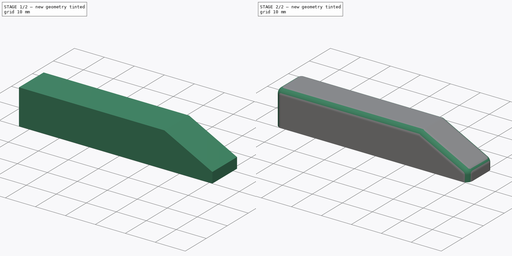
[diagram: build sequence overview — one tinted view per stage of 2, left to right]
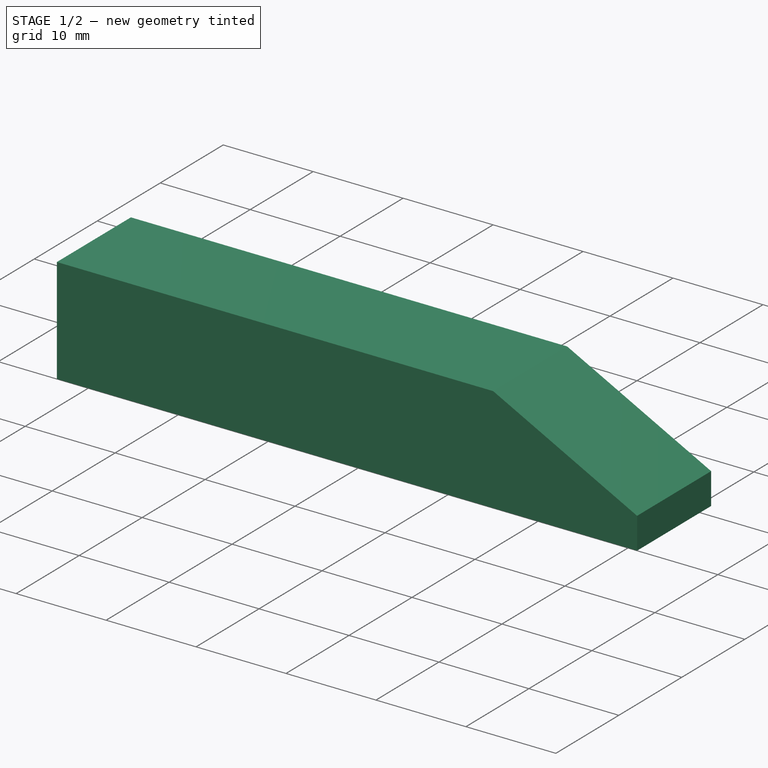
[diagram: stage 1 of 2 — iso view after this stage's code; geometry added in this stage tinted green]
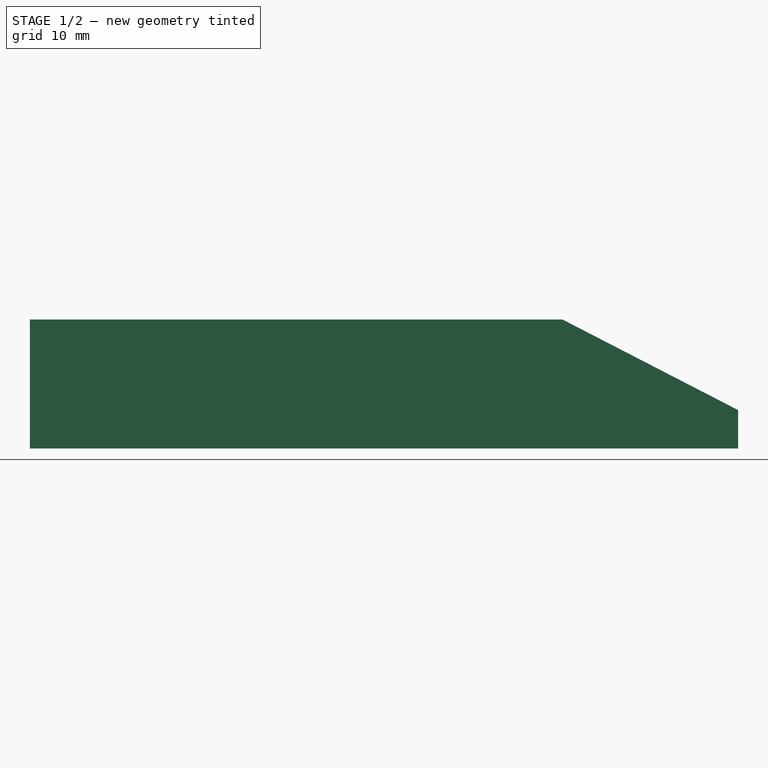
[diagram: stage 1 of 2 — front view after this stage's code; geometry added in this stage tinted green]
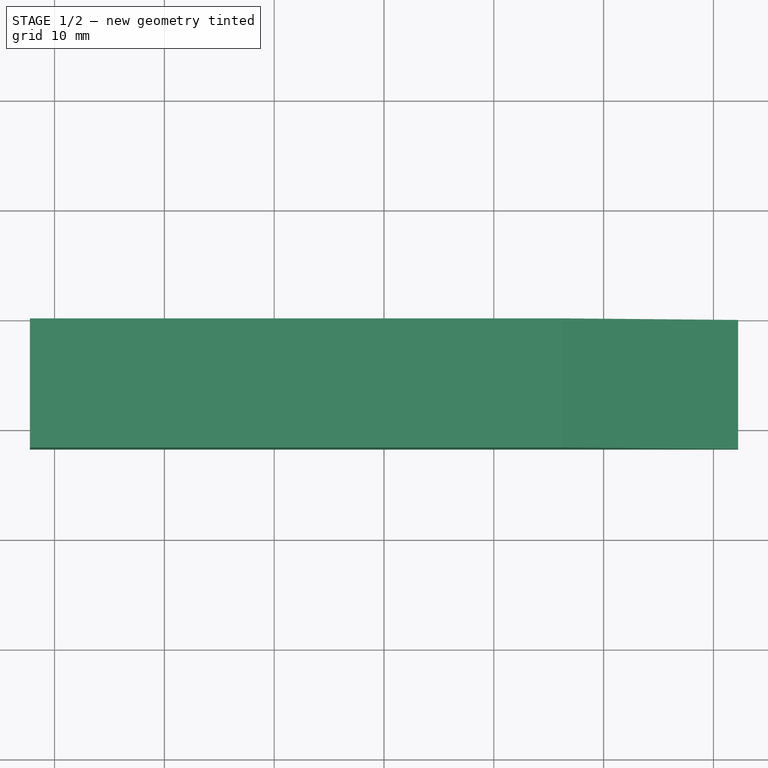
[diagram: stage 1 of 2 — top view after this stage's code; geometry added in this stage tinted green]
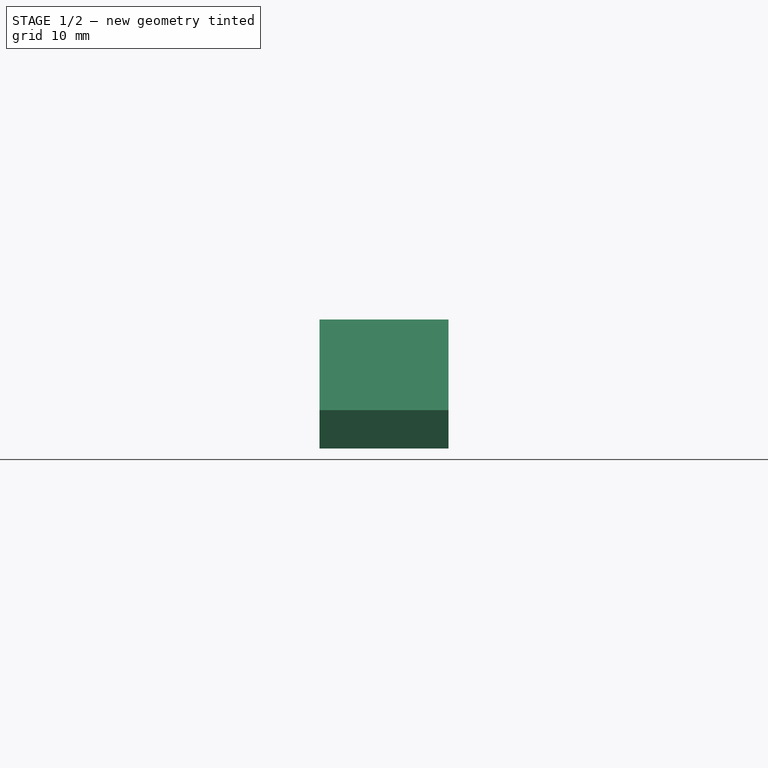
[diagram: stage 1 of 2 — right view after this stage's code; geometry added in this stage tinted green]
FCSTD DOCUMENT  (FreeCAD 1.1R41728 (Git))
Label: Уплотнитель
License: All rights reserved
LicenseURL: https://en.wikipedia.org/wiki/All_rights_reserved
objects: App::Point×1, Sketcher::SketchObject×1, PartDesign::Pad×1, PartDesign::Fillet×1, PartDesign::Body×1
note: 9 computed .brp shape members not serialized (recipe doc carries the construction recipe); baked Part::Feature solids carry a one-line shape summary decoded from their .brp

FEATURE [App::Point] Origin001  label="Начало координат"
  Role = Origin
FEATURE [Sketcher::SketchObject] Sketch
  ArcFitTolerance = 1e-06
  AttachmentSupport = -> [Origin]
  ExternalTypes = [0]
  FullyConstrained = true
  MakeInternals = false
  MapMode = 5
  Placement = pos=(0,0,0) rot=(1,0,0;1.5708rad)
  sketch-geometry (6):
    g0: LineSegment StartX=-32.25 StartY=5.875 StartZ=0 EndX=-32.25 EndY=-5.875 EndZ=0
    g1: LineSegment StartX=-32.25 StartY=-5.875 StartZ=0 EndX=32.25 EndY=-5.875 EndZ=0
    g2: LineSegment StartX=32.25 StartY=-5.875 StartZ=0 EndX=32.25 EndY=-2.375 EndZ=0
    g3: LineSegment StartX=32.25 StartY=-2.375 StartZ=0 EndX=16.25 EndY=5.875 EndZ=0
    g4: LineSegment StartX=16.25 StartY=5.875 StartZ=0 EndX=-32.25 EndY=5.875 EndZ=0
    g5: GeomPoint [constr] X=32.25 Y=5.875 Z=0
  constraints (16):
    c: Coincident(g0,g1)
    c: Horizontal(g1)
    c: Coincident(g1,g2)
    c: Coincident(g2,g3)
    c: Coincident(g3,g4)
    c: Coincident(g4,g0)
    c: Vertical(g0)
    c: Horizontal(g4)
    c: Vertical(g2)
    c: DistanceX(g3,g2) = 16
    c: DistanceX(g0,g2) = 64.5
    c: DistanceY(g1,g3) = 11.75  'h1'
    c: Distance(g2,g1) = 3.5
    c: Horizontal(g3,g5)
    c: Vertical(g5,g2)
    c: Symmetric(g0,g5,g-1)
FEATURE [PartDesign::Pad] Pad
  Direction = (0,-1,0)
  Length = 11.75
  Length2 = 10
  Profile = -> Sketch
  ReferenceAxis = -> Sketch [N_Axis]
  Refine = true
  Suppressed = false
  Type = 0
  expr: Length = Sketch.Constraints.h1
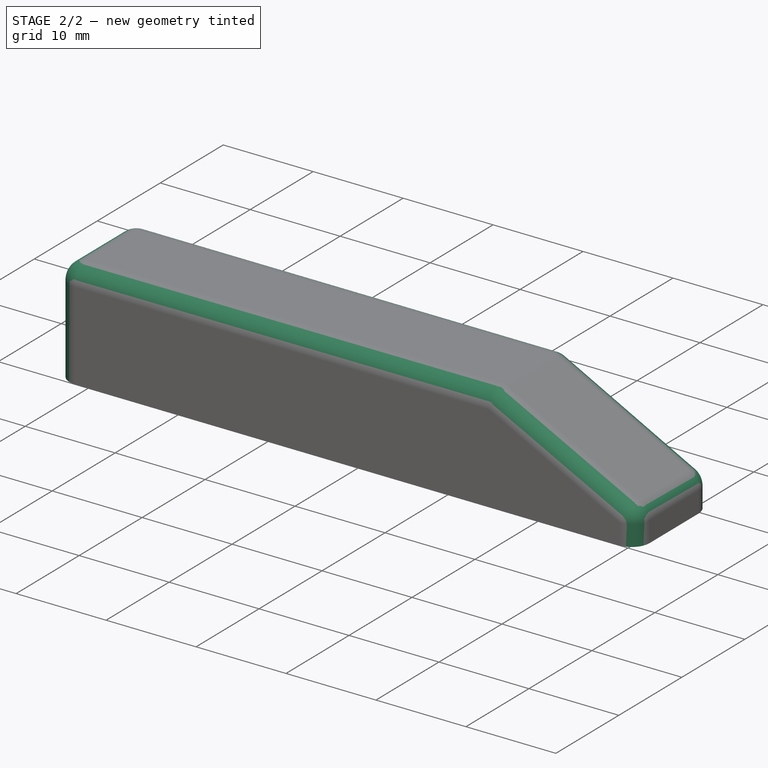
[diagram: stage 2 of 2 — iso view after this stage's code; geometry added in this stage tinted green]
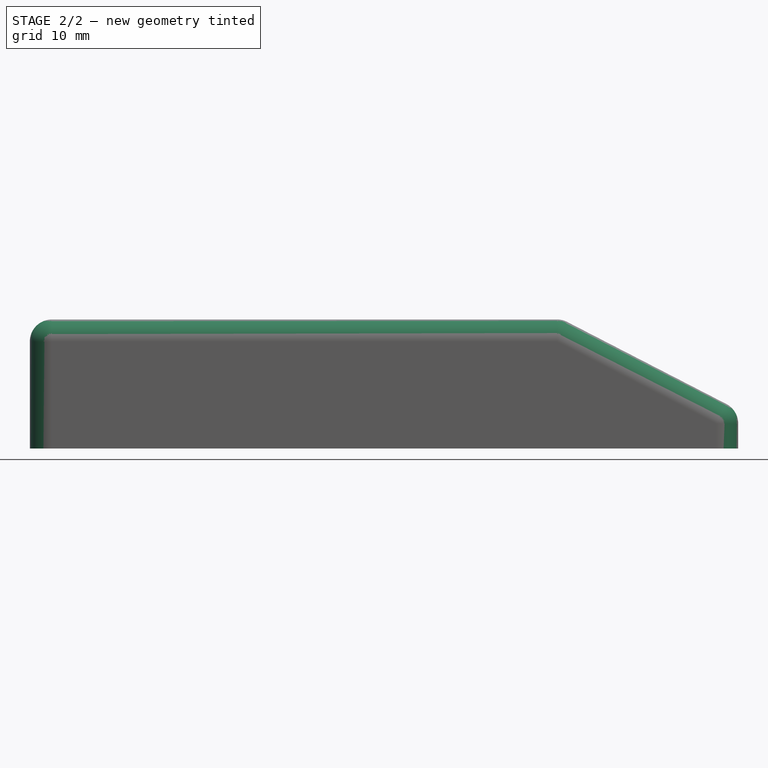
[diagram: stage 2 of 2 — front view after this stage's code; geometry added in this stage tinted green]
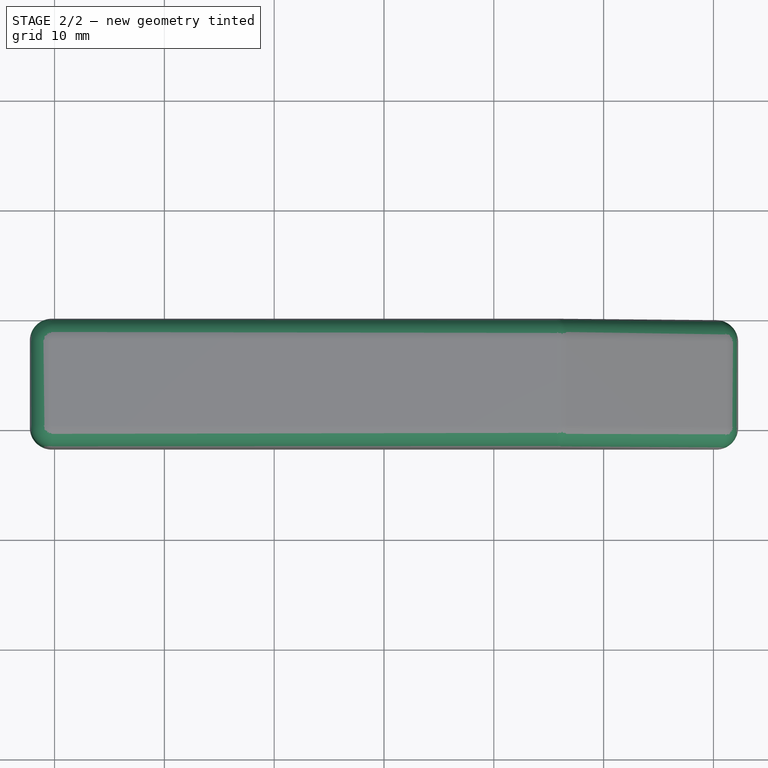
[diagram: stage 2 of 2 — top view after this stage's code; geometry added in this stage tinted green]
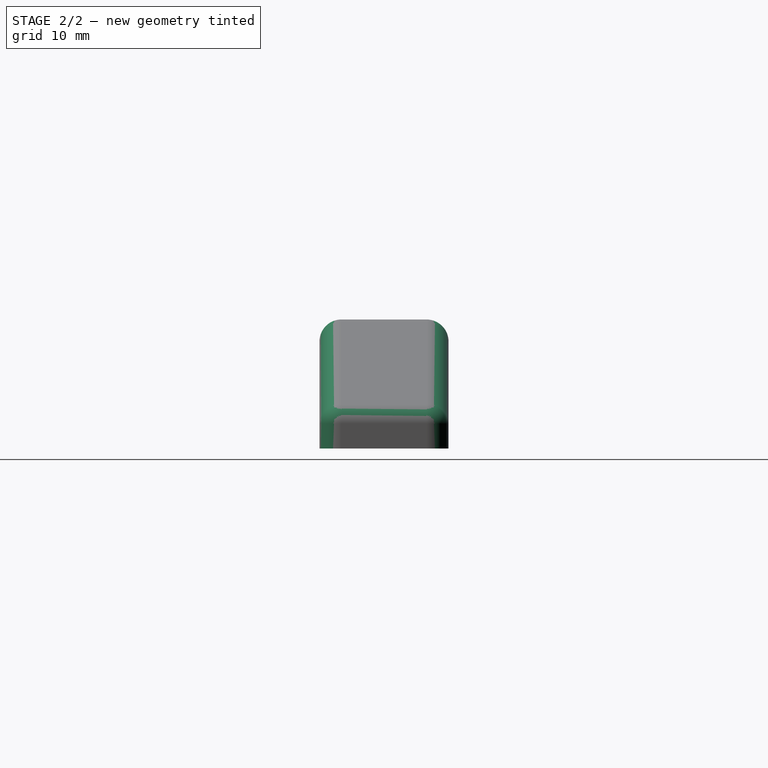
[diagram: stage 2 of 2 — right view after this stage's code; geometry added in this stage tinted green]
FEATURE [PartDesign::Fillet] Fillet
  Base = -> Pad [Edge9,Edge10,Edge8,Edge13,Edge12,Edge11,Edge15,Edge14,Edge3,Edge1,Edge4]
  BaseFeature = -> Pad
  Radius = 2
  Refine = true
  SupportTransform = false
  Suppressed = false
  UseAllEdges = false
FEATURE [PartDesign::Body] Body  label="Тело"
  AllowCompound = false
  Group = -> [Sketch,Pad,Fillet]
  Origin = -> Origin
  Tip = -> Fillet
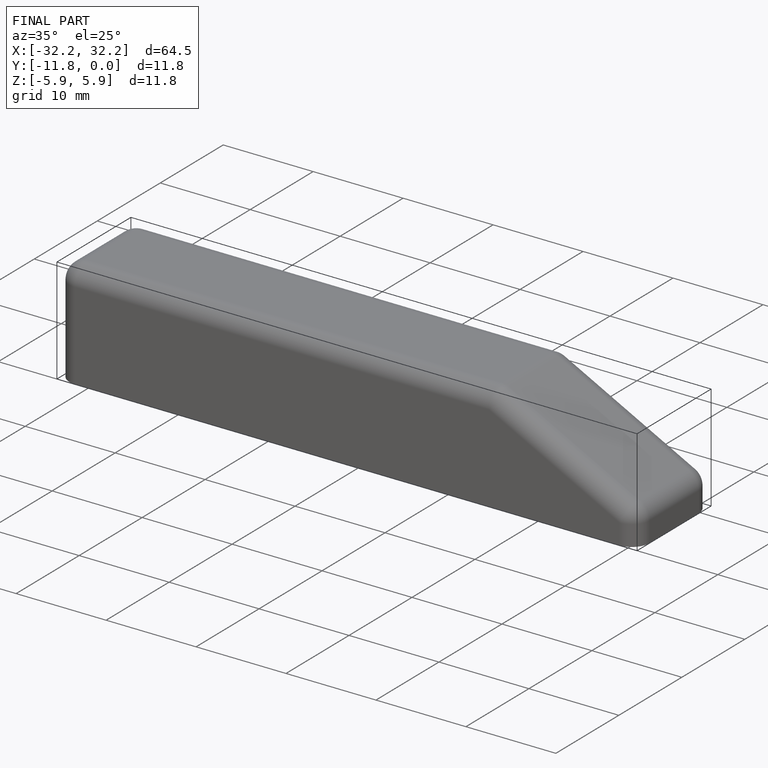
[diagram: finished part — iso view with bounding-box wireframe]
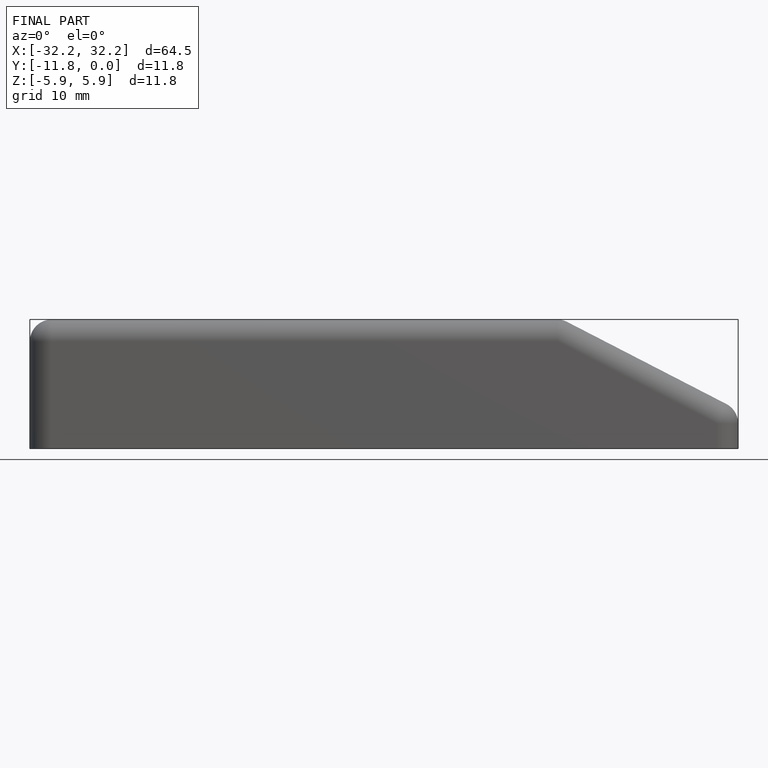
[diagram: finished part — front view with bounding-box wireframe]
